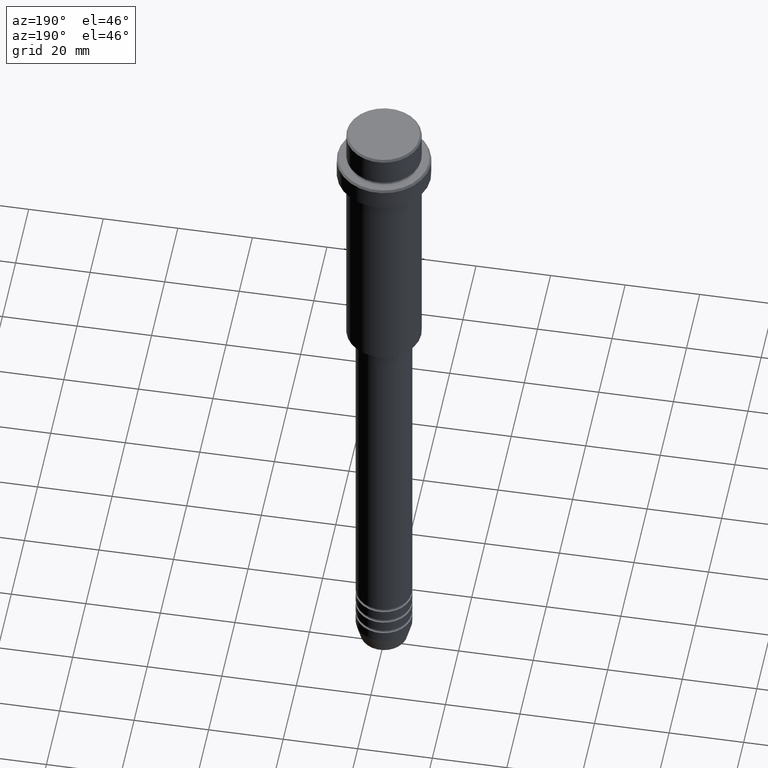
[diagram: clean part render]
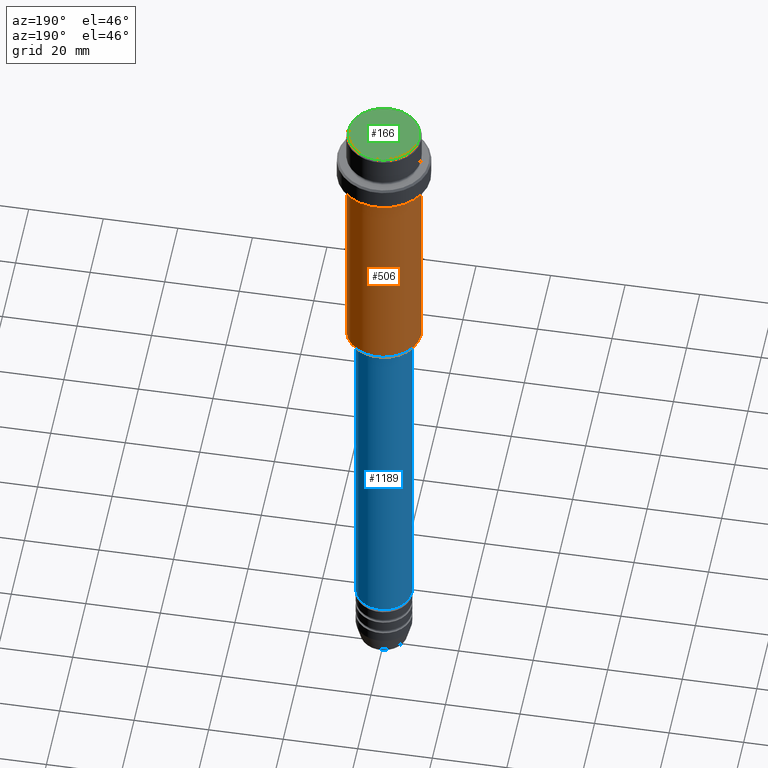
[diagram: same view with three faces highlighted in distinct colors, each labeled with its STEP entity id]
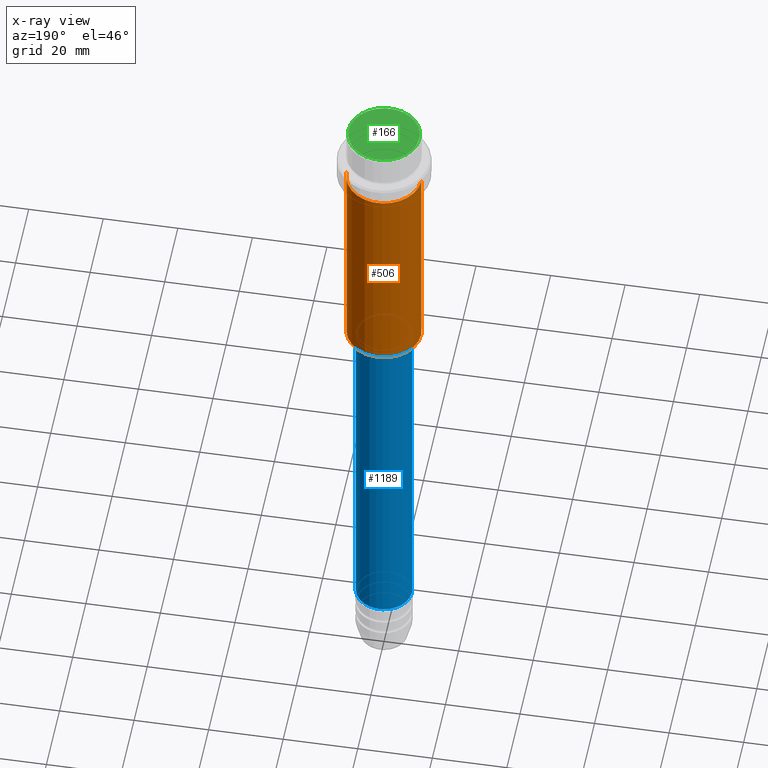
[diagram: x-ray of the same camera — body ghosted, the three highlighted faces saturated]
A machine part, auxiliary view with three faces highlighted in distinct colors.
The next image is the same camera in x-ray (body ghosted, the three faces saturated) — at least one of them is partly hidden behind the body in this view.
Their STEP definitions:

[orange] entity #506 — the highlighted cylindrical surface (partial cylindrical patch) has radius 10 mm, axis along (-0, -0, 1).
#11 = CARTESIAN_POINT ( 'NONE',  ( -10.00000000000000000, 1.224646799147353256E-15, 0.000000000000000000 ) ) ;
#35 = CIRCLE ( 'NONE', #1269, 10.00000000000000000 ) ;
#45 = EDGE_CURVE ( 'NONE', #1115, #1070, #984, .T. ) ;
#66 = EDGE_CURVE ( 'NONE', #1216, #1070, #35, .T. ) ;
#70 = ORIENTED_EDGE ( 'NONE', *, *, #45, .T. ) ;
#148 = AXIS2_PLACEMENT_3D ( 'NONE', #1091, #666, #881 ) ;
#214 = VECTOR ( 'NONE', #1207, 1000.000000000000000 ) ;
#319 = ORIENTED_EDGE ( 'NONE', *, *, #66, .F. ) ;
#382 = CARTESIAN_POINT ( 'NONE',  ( -10.00000000000000000, 1.224646799147353256E-15, -16.00000000000000000 ) ) ;
#424 = CARTESIAN_POINT ( 'NONE',  ( 10.00000000000000000, 0.000000000000000000, 0.000000000000000000 ) ) ;
#426 = CARTESIAN_POINT ( 'NONE',  ( 10.00000000000000000, 0.000000000000000000, -16.00000000000000000 ) ) ;
#429 = DIRECTION ( 'NONE',  ( -0.000000000000000000, -0.000000000000000000, 1.000000000000000000 ) ) ;
#443 = EDGE_CURVE ( 'NONE', #476, #1216, #871, .T. ) ;
#448 = CYLINDRICAL_SURFACE ( 'NONE', #942, 10.00000000000000000 ) ;
#475 = CARTESIAN_POINT ( 'NONE',  ( 0.000000000000000000, 0.000000000000000000, -16.00000000000000000 ) ) ;
#476 = VERTEX_POINT ( 'NONE', #653 ) ;
#492 = EDGE_CURVE ( 'NONE', #476, #1115, #808, .T. ) ;
#506 = ADVANCED_FACE ( 'NONE', ( #772 ), #448, .T. ) ;
#544 = ORIENTED_EDGE ( 'NONE', *, *, #492, .T. ) ;
#570 = DIRECTION ( 'NONE',  ( -0.000000000000000000, -0.000000000000000000, 1.000000000000000000 ) ) ;
#653 = CARTESIAN_POINT ( 'NONE',  ( 10.00000000000000000, 0.000000000000000000, -74.49999999999998579 ) ) ;
#666 = DIRECTION ( 'NONE',  ( -0.000000000000000000, -0.000000000000000000, 1.000000000000000000 ) ) ;
#766 = EDGE_LOOP ( 'NONE', ( #544, #70, #319, #1119 ) ) ;
#772 = FACE_OUTER_BOUND ( 'NONE', #766, .T. ) ;
#808 = CIRCLE ( 'NONE', #148, 10.00000000000000000 ) ;
#815 = CARTESIAN_POINT ( 'NONE',  ( -10.00000000000000000, 1.224646799147353256E-15, -74.49999999999998579 ) ) ;
#871 = LINE ( 'NONE', #424, #214 ) ;
#881 = DIRECTION ( 'NONE',  ( -1.000000000000000000, 0.000000000000000000, 0.000000000000000000 ) ) ;
#932 = DIRECTION ( 'NONE',  ( -0.000000000000000000, -0.000000000000000000, 1.000000000000000000 ) ) ;
#942 = AXIS2_PLACEMENT_3D ( 'NONE', #1113, #570, #1003 ) ;
#984 = LINE ( 'NONE', #11, #1345 ) ;
#1003 = DIRECTION ( 'NONE',  ( 1.000000000000000000, 0.000000000000000000, 0.000000000000000000 ) ) ;
#1070 = VERTEX_POINT ( 'NONE', #382 ) ;
#1091 = CARTESIAN_POINT ( 'NONE',  ( 0.000000000000000000, 0.000000000000000000, -74.49999999999998579 ) ) ;
#1113 = CARTESIAN_POINT ( 'NONE',  ( 0.000000000000000000, 0.000000000000000000, 0.000000000000000000 ) ) ;
#1115 = VERTEX_POINT ( 'NONE', #815 ) ;
#1119 = ORIENTED_EDGE ( 'NONE', *, *, #443, .F. ) ;
#1207 = DIRECTION ( 'NONE',  ( -0.000000000000000000, -0.000000000000000000, 1.000000000000000000 ) ) ;
#1216 = VERTEX_POINT ( 'NONE', #426 ) ;
#1263 = DIRECTION ( 'NONE',  ( 1.000000000000000000, 0.000000000000000000, 0.000000000000000000 ) ) ;
#1269 = AXIS2_PLACEMENT_3D ( 'NONE', #475, #932, #1263 ) ;
#1345 = VECTOR ( 'NONE', #429, 1000.000000000000000 ) ;

[blue] entity #1189 — the highlighted cylindrical surface (edge-blend (fillet) strip) has radius 7.5 mm, axis along (-0, -0, 1).
#51 = CARTESIAN_POINT ( 'NONE',  ( 7.500000000000000000, 0.000000000000000000, 0.000000000000000000 ) ) ;
#179 = CARTESIAN_POINT ( 'NONE',  ( -7.500000000000000000, 9.184850993605147944E-16, -76.00000000000001421 ) ) ;
#201 = ORIENTED_EDGE ( 'NONE', *, *, #633, .F. ) ;
#224 = CARTESIAN_POINT ( 'NONE',  ( 0.000000000000000000, 0.000000000000000000, -76.00000000000001421 ) ) ;
#265 = DIRECTION ( 'NONE',  ( -0.000000000000000000, -0.000000000000000000, 1.000000000000000000 ) ) ;
#287 = VERTEX_POINT ( 'NONE', #179 ) ;
#294 = DIRECTION ( 'NONE',  ( -0.000000000000000000, -0.000000000000000000, 1.000000000000000000 ) ) ;
#300 = VERTEX_POINT ( 'NONE', #619 ) ;
#301 = DIRECTION ( 'NONE',  ( -0.000000000000000000, -0.000000000000000000, 1.000000000000000000 ) ) ;
#346 = CARTESIAN_POINT ( 'NONE',  ( -7.500000000000000000, 9.184850993605147944E-16, -172.9999999999999147 ) ) ;
#383 = EDGE_CURVE ( 'NONE', #300, #287, #966, .T. ) ;
#474 = CARTESIAN_POINT ( 'NONE',  ( 7.500000000000000000, 0.000000000000000000, -172.9999999999999147 ) ) ;
#517 = LINE ( 'NONE', #640, #1349 ) ;
#526 = VERTEX_POINT ( 'NONE', #474 ) ;
#537 = CARTESIAN_POINT ( 'NONE',  ( 0.000000000000000000, 0.000000000000000000, 0.000000000000000000 ) ) ;
#545 = DIRECTION ( 'NONE',  ( 1.000000000000000000, 0.000000000000000000, 0.000000000000000000 ) ) ;
#548 = DIRECTION ( 'NONE',  ( 1.000000000000000000, 0.000000000000000000, 0.000000000000000000 ) ) ;
#566 = DIRECTION ( 'NONE',  ( -0.000000000000000000, -0.000000000000000000, 1.000000000000000000 ) ) ;
#619 = CARTESIAN_POINT ( 'NONE',  ( 7.500000000000000000, 0.000000000000000000, -76.00000000000001421 ) ) ;
#630 = CYLINDRICAL_SURFACE ( 'NONE', #700, 7.500000000000000000 ) ;
#632 = AXIS2_PLACEMENT_3D ( 'NONE', #1291, #301, #861 ) ;
#633 = EDGE_CURVE ( 'NONE', #526, #300, #1120, .T. ) ;
#639 = FACE_OUTER_BOUND ( 'NONE', #855, .T. ) ;
#640 = CARTESIAN_POINT ( 'NONE',  ( -7.500000000000000000, 9.184850993605147944E-16, 0.000000000000000000 ) ) ;
#698 = VECTOR ( 'NONE', #265, 1000.000000000000000 ) ;
#700 = AXIS2_PLACEMENT_3D ( 'NONE', #537, #294, #545 ) ;
#759 = ORIENTED_EDGE ( 'NONE', *, *, #805, .T. ) ;
#775 = ORIENTED_EDGE ( 'NONE', *, *, #1212, .T. ) ;
#805 = EDGE_CURVE ( 'NONE', #882, #287, #517, .T. ) ;
#838 = ORIENTED_EDGE ( 'NONE', *, *, #383, .F. ) ;
#850 = AXIS2_PLACEMENT_3D ( 'NONE', #224, #566, #548 ) ;
#855 = EDGE_LOOP ( 'NONE', ( #775, #759, #838, #201 ) ) ;
#861 = DIRECTION ( 'NONE',  ( 1.000000000000000000, 0.000000000000000000, 0.000000000000000000 ) ) ;
#882 = VERTEX_POINT ( 'NONE', #346 ) ;
#966 = CIRCLE ( 'NONE', #850, 7.500000000000000000 ) ;
#1120 = LINE ( 'NONE', #51, #698 ) ;
#1164 = CIRCLE ( 'NONE', #632, 7.500000000000000000 ) ;
#1189 = ADVANCED_FACE ( 'NONE', ( #639 ), #630, .T. ) ;
#1212 = EDGE_CURVE ( 'NONE', #526, #882, #1164, .T. ) ;
#1291 = CARTESIAN_POINT ( 'NONE',  ( 0.000000000000000000, 0.000000000000000000, -172.9999999999999147 ) ) ;
#1349 = VECTOR ( 'NONE', #1407, 1000.000000000000000 ) ;
#1407 = DIRECTION ( 'NONE',  ( -0.000000000000000000, -0.000000000000000000, 1.000000000000000000 ) ) ;

[green] entity #166 — the highlighted planar face has unit normal (0, -0, 1).
#40 = ORIENTED_EDGE ( 'NONE', *, *, #339, .T. ) ;
#59 = AXIS2_PLACEMENT_3D ( 'NONE', #891, #237, #341 ) ;
#79 = CARTESIAN_POINT ( 'NONE',  ( -9.500000000000008882, 0.000000000000000000, 0.000000000000000000 ) ) ;
#99 = ORIENTED_EDGE ( 'NONE', *, *, #536, .T. ) ;
#151 = VERTEX_POINT ( 'NONE', #360 ) ;
#161 = PLANE ( 'NONE',  #390 ) ;
#166 = ADVANCED_FACE ( 'NONE', ( #913 ), #161, .T. ) ;
#213 = EDGE_LOOP ( 'NONE', ( #99, #40 ) ) ;
#237 = DIRECTION ( 'NONE',  ( -0.000000000000000000, -0.000000000000000000, 1.000000000000000000 ) ) ;
#292 = VERTEX_POINT ( 'NONE', #79 ) ;
#325 = CIRCLE ( 'NONE', #852, 9.500000000000008882 ) ;
#339 = EDGE_CURVE ( 'NONE', #151, #292, #697, .T. ) ;
#341 = DIRECTION ( 'NONE',  ( 1.000000000000000000, 0.000000000000000000, 0.000000000000000000 ) ) ;
#360 = CARTESIAN_POINT ( 'NONE',  ( 9.500000000000008882, 1.194030629168669864E-15, 0.000000000000000000 ) ) ;
#366 = DIRECTION ( 'NONE',  ( 0.000000000000000000, -0.000000000000000000, 1.000000000000000000 ) ) ;
#390 = AXIS2_PLACEMENT_3D ( 'NONE', #1364, #366, #1247 ) ;
#466 = DIRECTION ( 'NONE',  ( 1.000000000000000000, 0.000000000000000000, 0.000000000000000000 ) ) ;
#479 = CARTESIAN_POINT ( 'NONE',  ( 0.000000000000000000, 0.000000000000000000, 0.000000000000000000 ) ) ;
#536 = EDGE_CURVE ( 'NONE', #292, #151, #325, .T. ) ;
#697 = CIRCLE ( 'NONE', #59, 9.500000000000008882 ) ;
#713 = DIRECTION ( 'NONE',  ( -0.000000000000000000, -0.000000000000000000, 1.000000000000000000 ) ) ;
#852 = AXIS2_PLACEMENT_3D ( 'NONE', #479, #713, #466 ) ;
#891 = CARTESIAN_POINT ( 'NONE',  ( 0.000000000000000000, 0.000000000000000000, 0.000000000000000000 ) ) ;
#913 = FACE_OUTER_BOUND ( 'NONE', #213, .T. ) ;
#1247 = DIRECTION ( 'NONE',  ( 1.000000000000000000, 0.000000000000000000, 0.000000000000000000 ) ) ;
#1364 = CARTESIAN_POINT ( 'NONE',  ( 0.000000000000000000, 0.000000000000000000, 0.000000000000000000 ) ) ;